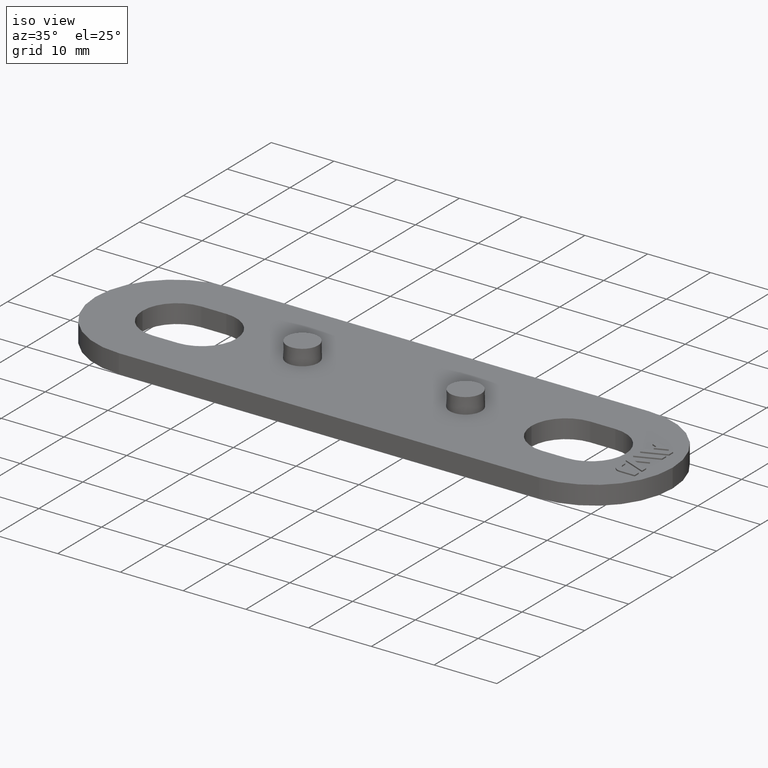
[diagram: clean part render]
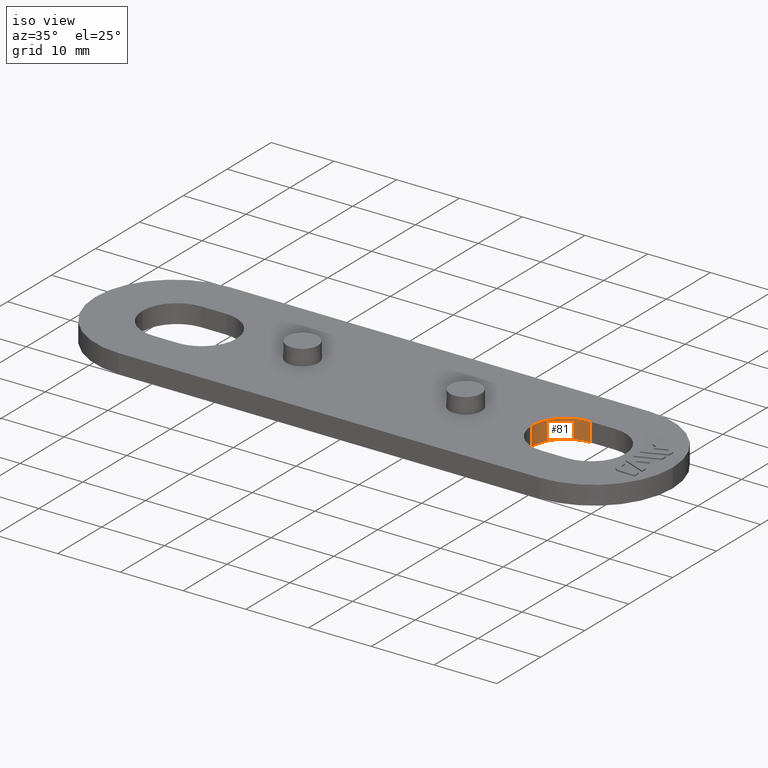
[diagram: same view with one face highlighted and labeled with its STEP entity id]
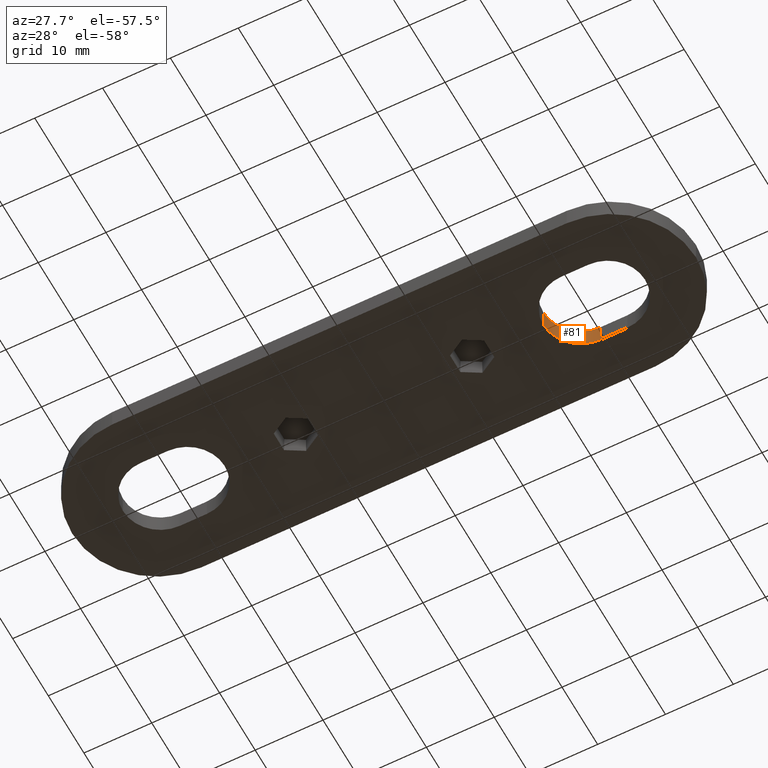
[diagram: same view with one face highlighted and labeled with its STEP entity id]
A machine part, iso view. The second image highlights one B-rep face of the part: STEP entity #81.
A second angle (auxiliary view) of the same face is appended — the face is thin or edge-on in the first view.
In plain terms, the highlighted cylindrical surface (partial cylindrical patch) has radius 5.5 mm, axis along (0, -0, -1).
Its self-contained STEP definition (entity closure, byte-faithful):
#81 = ADVANCED_FACE( '', ( #172 ), #173, .F. );
#172 = FACE_OUTER_BOUND( '', #329, .T. );
#173 = CYLINDRICAL_SURFACE( '', #330, 5.50000000000000 );
#329 = EDGE_LOOP( '', ( #573, #574, #575, #576 ) );
#330 = AXIS2_PLACEMENT_3D( '', #577, #578, #579 );
#573 = ORIENTED_EDGE( '', *, *, #1101, .T. );
#574 = ORIENTED_EDGE( '', *, *, #1117, .T. );
#575 = ORIENTED_EDGE( '', *, *, #1041, .T. );
#576 = ORIENTED_EDGE( '', *, *, #1087, .F. );
#577 = CARTESIAN_POINT( '', ( 29.0000000000000, 2.95596819075516E-015, -1.00001004144090E-005 ) );
#578 = DIRECTION( '', ( 0.000000000000000, -6.12303176911189E-017, -1.00000000000000 ) );
#579 = DIRECTION( '', ( -1.00000000000000, 1.83690953073357E-016, -1.12474554136660E-032 ) );
#1041 = EDGE_CURVE( '', #1230, #1231, #1232, .T. );
#1087 = EDGE_CURVE( '', #1318, #1231, #1320, .T. );
#1101 = EDGE_CURVE( '', #1318, #1346, #1347, .F. );
#1117 = EDGE_CURVE( '', #1346, #1230, #1376, .T. );
#1230 = VERTEX_POINT( '', #1539 );
#1231 = VERTEX_POINT( '', #1540 );
#1232 = CIRCLE( '', #1541, 5.50000000000000 );
#1318 = VERTEX_POINT( '', #1656 );
#1320 = LINE( '', #1658, #1659 );
#1346 = VERTEX_POINT( '', #1698 );
#1347 = CIRCLE( '', #1699, 5.50000000000000 );
#1376 = LINE( '', #1733, #1734 );
#1539 = CARTESIAN_POINT( '', ( 29.0000000000000, 5.50000000000000, 3.00000300009620 ) );
#1540 = CARTESIAN_POINT( '', ( 23.5000000000000, 5.67373857253074E-015, 3.00000300009620 ) );
#1541 = AXIS2_PLACEMENT_3D( '', #1961, #1962, #1963 );
#1656 = CARTESIAN_POINT( '', ( 23.5000000000000, 4.98489731480881E-015, -2.77555756156289E-014 ) );
#1658 = CARTESIAN_POINT( '', ( 23.5000000000000, 5.49004682345121E-015, -1.00001004144090E-005 ) );
#1659 = VECTOR( '', #2041, 1000.00000000000 );
#1698 = CARTESIAN_POINT( '', ( 29.0000000000000, 5.50000000000000, -2.80923423629301E-014 ) );
#1699 = AXIS2_PLACEMENT_3D( '', #2055, #2056, #2057 );
#1733 = CARTESIAN_POINT( '', ( 29.0000000000000, 5.50000000000000, -1.00001004147458E-005 ) );
#1734 = VECTOR( '', #2093, 1000.00000000000 );
#1961 = CARTESIAN_POINT( '', ( 29.0000000000000, 3.13965993983468E-015, 3.00000300009620 ) );
#1962 = DIRECTION( '', ( 1.44762238050085E-048, 6.12303176911189E-017, 1.00000000000000 ) );
#1963 = DIRECTION( '', ( -1.83690953073357E-016, -1.00000000000000, 6.12303176911189E-017 ) );
#2041 = DIRECTION( '', ( 0.000000000000000, 6.12303176911189E-017, 1.00000000000000 ) );
#2055 = CARTESIAN_POINT( '', ( 29.0000000000000, 2.95596880306448E-015, -2.77555756156289E-014 ) );
#2056 = DIRECTION( '', ( 0.000000000000000, 6.12303176911189E-017, 1.00000000000000 ) );
#2057 = DIRECTION( '', ( 0.000000000000000, -1.00000000000000, 6.12303176911189E-017 ) );
#2093 = DIRECTION( '', ( 0.000000000000000, 6.12303176911189E-017, 1.00000000000000 ) );